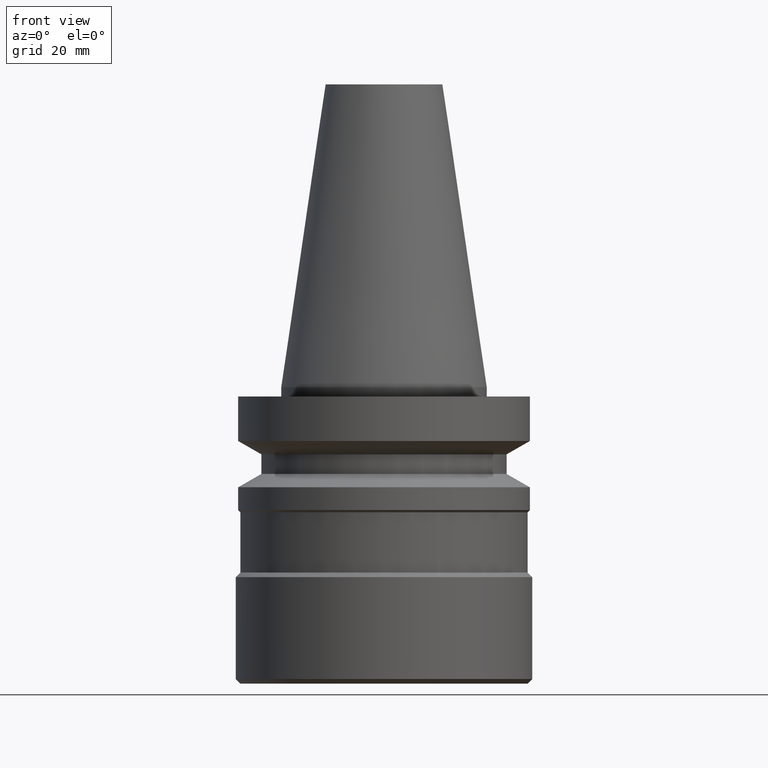
[diagram: clean part render]
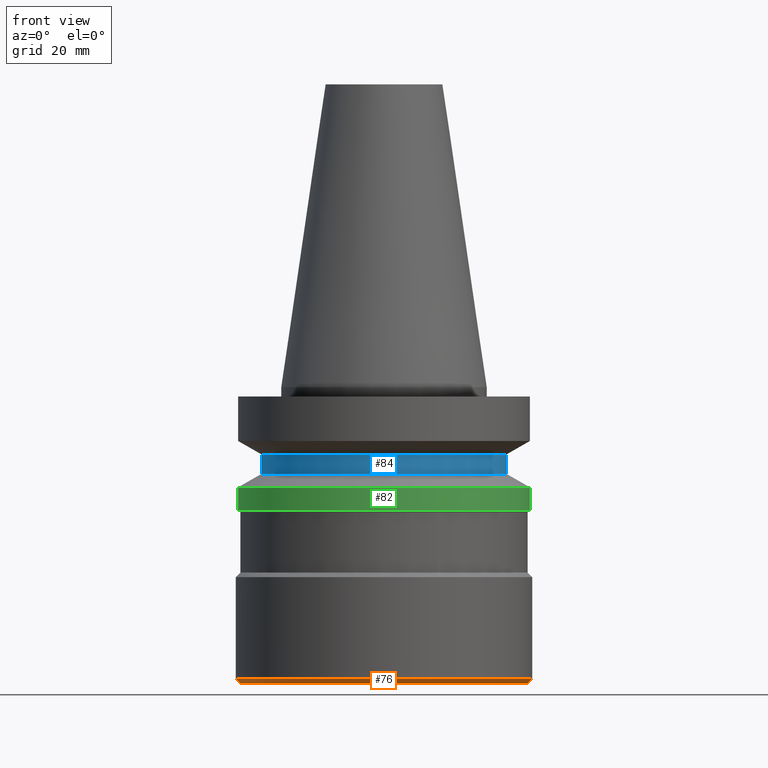
[diagram: same view with three faces highlighted in distinct colors, each labeled with its STEP entity id]
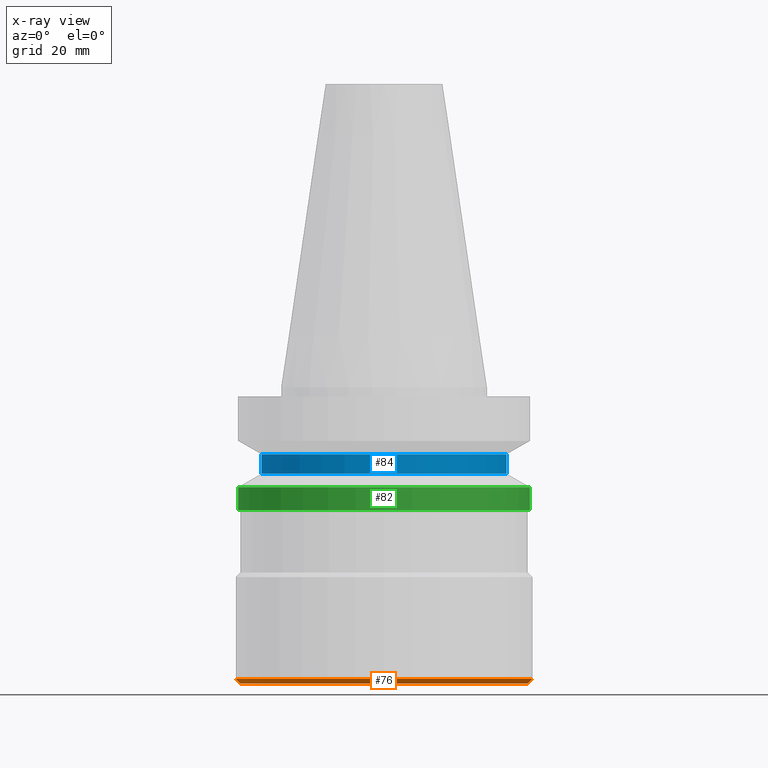
[diagram: x-ray of the same camera — body ghosted, the three highlighted faces saturated]
A machine part, front view with three faces highlighted in distinct colors.
The next image is the same camera in x-ray (body ghosted, the three faces saturated) — at least one of them is partly hidden behind the body in this view.
Their STEP definitions:

[orange] entity #76 — the highlighted conical surface has half-angle 45 deg.
#76=ADVANCED_FACE('',(#93,#94),#95,.T.);
#93=FACE_BOUND('',#136,.T.);
#94=FACE_BOUND('',#137,.T.);
#95=CONICAL_SURFACE('',#138,31.5,0.785398163397448);
#136=EDGE_LOOP('',(#181));
#137=EDGE_LOOP('',(#182));
#138=AXIS2_PLACEMENT_3D('',#183,#184,#185);
#181=ORIENTED_EDGE('',*,*,#251,.F.);
#182=ORIENTED_EDGE('',*,*,#250,.T.);
#183=CARTESIAN_POINT('',(3.88825358729285E-015,7.77650717458569E-015,-63.5));
#184=DIRECTION('',(-6.12323399573677E-017,-1.22464679914735E-016,1.0));
#185=DIRECTION('',(-1.23259516440783E-032,1.0,1.22464679914735E-016));
#250=EDGE_CURVE('',#264,#264,#265,.T.);
#251=EDGE_CURVE('',#266,#266,#267,.T.);
#264=VERTEX_POINT('',#292);
#265=CIRCLE('',#293,31.0);
#266=VERTEX_POINT('',#294);
#267=CIRCLE('',#295,32.0);
#292=CARTESIAN_POINT('',(3.91886975727153E-015,31.0,-64.0));
#293=AXIS2_PLACEMENT_3D('',#320,#321,#322);
#294=CARTESIAN_POINT('',(3.85763741731416E-015,32.0,-63.0));
#295=AXIS2_PLACEMENT_3D('',#323,#324,#325);
#320=CARTESIAN_POINT('',(3.91886975727153E-015,7.83773951454306E-015,-64.0));
#321=DIRECTION('',(-6.12323399573677E-017,-1.22464679914735E-016,1.0));
#322=DIRECTION('',(-1.23259516440783E-032,1.0,1.22464679914735E-016));
#323=CARTESIAN_POINT('',(3.85763741731416E-015,7.71527483462832E-015,-63.0));
#324=DIRECTION('',(-6.12323399573677E-017,-1.22464679914735E-016,1.0));
#325=DIRECTION('',(-1.23259516440783E-032,1.0,1.22464679914735E-016));

[blue] entity #84 — the highlighted cylindrical surface (bore or boss wall) has radius 26.5 mm, axis along (0, 0, -1).
#84=ADVANCED_FACE('',(#116,#117),#118,.T.);
#116=FACE_BOUND('',#159,.T.);
#117=FACE_BOUND('',#160,.T.);
#118=CYLINDRICAL_SURFACE('',#161,26.5);
#159=EDGE_LOOP('',(#220));
#160=EDGE_LOOP('',(#221));
#161=AXIS2_PLACEMENT_3D('',#222,#223,#224);
#220=ORIENTED_EDGE('',*,*,#259,.F.);
#221=ORIENTED_EDGE('',*,*,#258,.T.);
#222=CARTESIAN_POINT('',(1.0164568432923E-015,2.0329136865846E-015,-16.6));
#223=DIRECTION('',(6.12323399573677E-017,1.22464679914735E-016,-1.0));
#224=DIRECTION('',(-1.23259516440783E-032,1.0,1.22464679914735E-016));
#258=EDGE_CURVE('',#280,#280,#281,.T.);
#259=EDGE_CURVE('',#282,#282,#283,.T.);
#280=VERTEX_POINT('',#308);
#281=CIRCLE('',#309,26.5);
#282=VERTEX_POINT('',#310);
#283=CIRCLE('',#311,26.5);
#308=CARTESIAN_POINT('',(1.14585599171476E-015,26.5,-18.7132484649867));
#309=AXIS2_PLACEMENT_3D('',#344,#345,#346);
#310=CARTESIAN_POINT('',(8.87057694869848E-016,26.5,-14.4867515350132));
#311=AXIS2_PLACEMENT_3D('',#347,#348,#349);
#344=CARTESIAN_POINT('',(1.14585599171476E-015,2.29171198342951E-015,-18.7132484649867));
#345=DIRECTION('',(-6.12323399573677E-017,-1.22464679914735E-016,1.0));
#346=DIRECTION('',(-1.23259516440783E-032,1.0,1.22464679914735E-016));
#347=CARTESIAN_POINT('',(8.87057694869849E-016,1.7741153897397E-015,-14.4867515350132));
#348=DIRECTION('',(-6.12323399573677E-017,-1.22464679914735E-016,1.0));
#349=DIRECTION('',(-1.23259516440783E-032,1.0,1.22464679914735E-016));

[green] entity #82 — the highlighted cylindrical surface (bore or boss wall) has radius 31.5 mm, axis along (0, 0, -1).
#82=ADVANCED_FACE('',(#110,#111),#112,.T.);
#110=FACE_BOUND('',#153,.T.);
#111=FACE_BOUND('',#154,.T.);
#112=CYLINDRICAL_SURFACE('',#155,31.5);
#153=EDGE_LOOP('',(#210));
#154=EDGE_LOOP('',(#211));
#155=AXIS2_PLACEMENT_3D('',#212,#213,#214);
#210=ORIENTED_EDGE('',*,*,#257,.F.);
#211=ORIENTED_EDGE('',*,*,#256,.T.);
#212=CARTESIAN_POINT('',(1.47263776471084E-015,2.94527552942167E-015,-24.0499998160473));
#213=DIRECTION('',(6.12323399573677E-017,1.22464679914735E-016,-1.0));
#214=DIRECTION('',(-1.23259516440783E-032,1.0,1.22464679914735E-016));
#256=EDGE_CURVE('',#276,#276,#277,.T.);
#257=EDGE_CURVE('',#278,#278,#279,.T.);
#276=VERTEX_POINT('',#304);
#277=CIRCLE('',#305,31.5);
#278=VERTEX_POINT('',#306);
#279=CIRCLE('',#307,31.5);
#304=CARTESIAN_POINT('',(1.62265700887024E-015,31.5,-26.5));
#305=AXIS2_PLACEMENT_3D('',#338,#339,#340);
#306=CARTESIAN_POINT('',(1.32261852055143E-015,31.5,-21.5999996320946));
#307=AXIS2_PLACEMENT_3D('',#341,#342,#343);
#338=CARTESIAN_POINT('',(1.62265700887024E-015,3.24531401774049E-015,-26.5));
#339=DIRECTION('',(-6.12323399573677E-017,-1.22464679914735E-016,1.0));
#340=DIRECTION('',(-1.23259516440783E-032,1.0,1.22464679914735E-016));
#341=CARTESIAN_POINT('',(1.32261852055143E-015,2.64523704110286E-015,-21.5999996320946));
#342=DIRECTION('',(-6.12323399573677E-017,-1.22464679914735E-016,1.0));
#343=DIRECTION('',(-1.23259516440783E-032,1.0,1.22464679914735E-016));